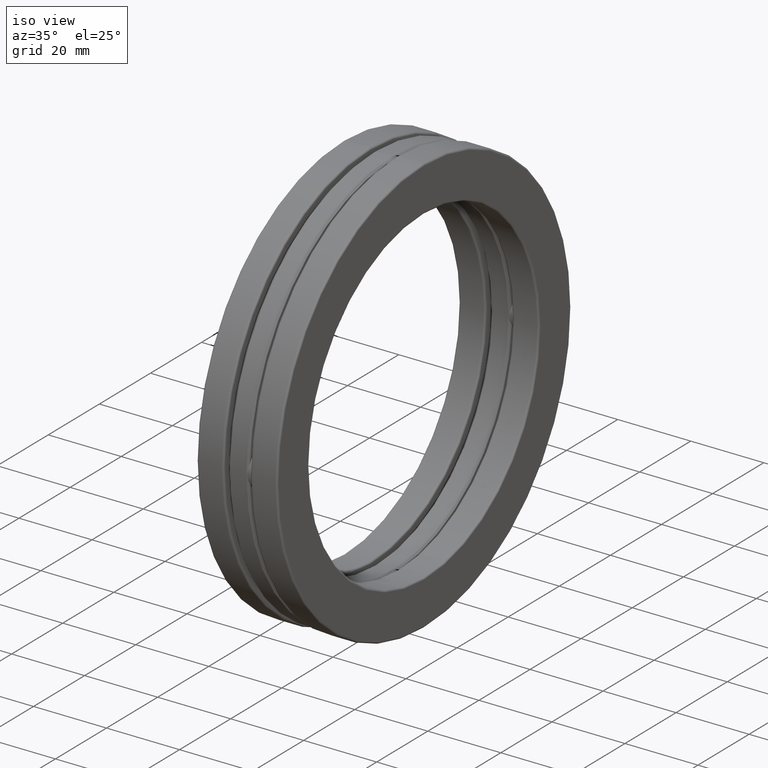
[diagram: clean part render]
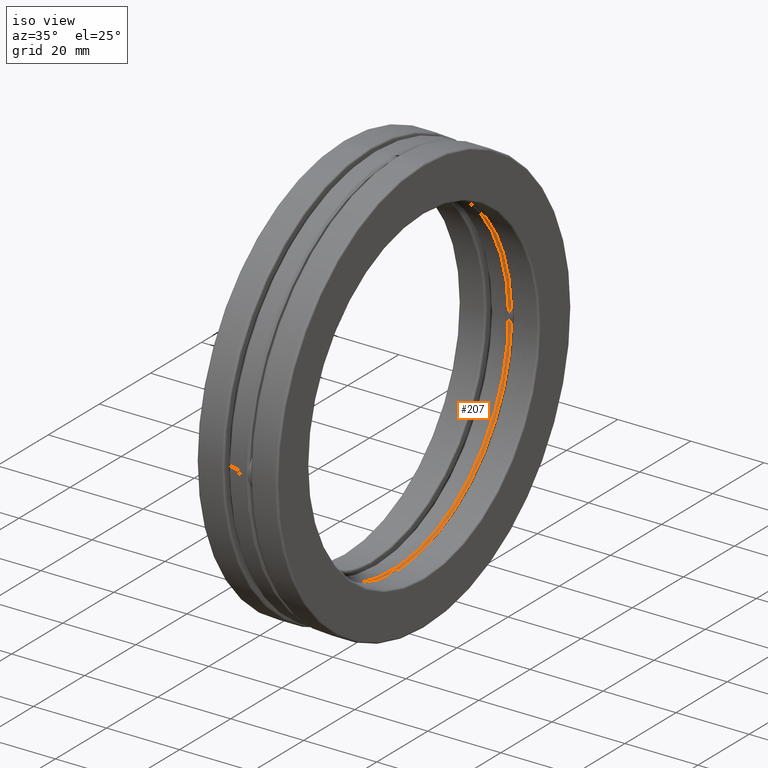
[diagram: same view with one face highlighted and labeled with its STEP entity id]
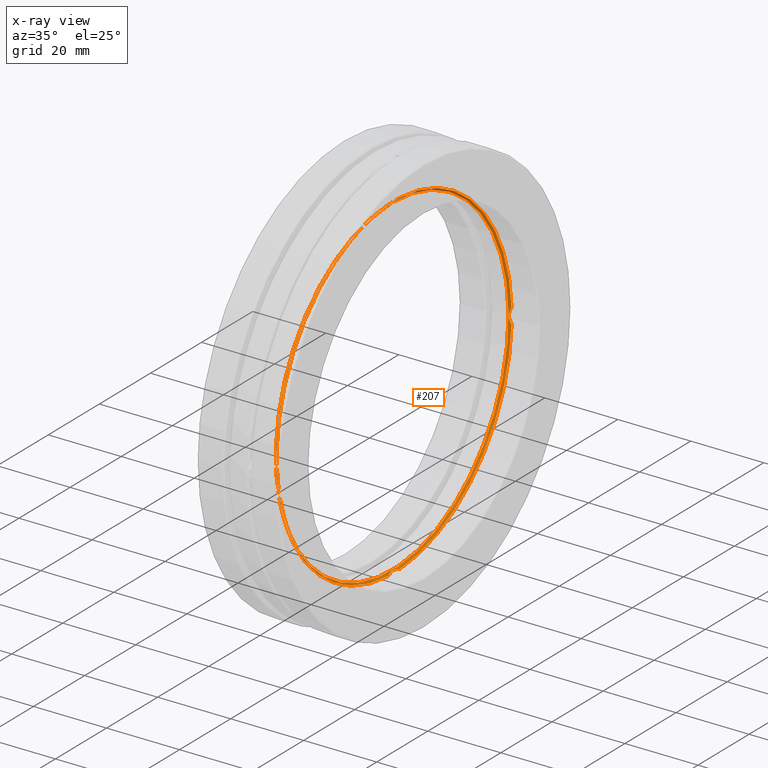
[diagram: x-ray of the same camera — body ghosted, the highlighted face saturated]
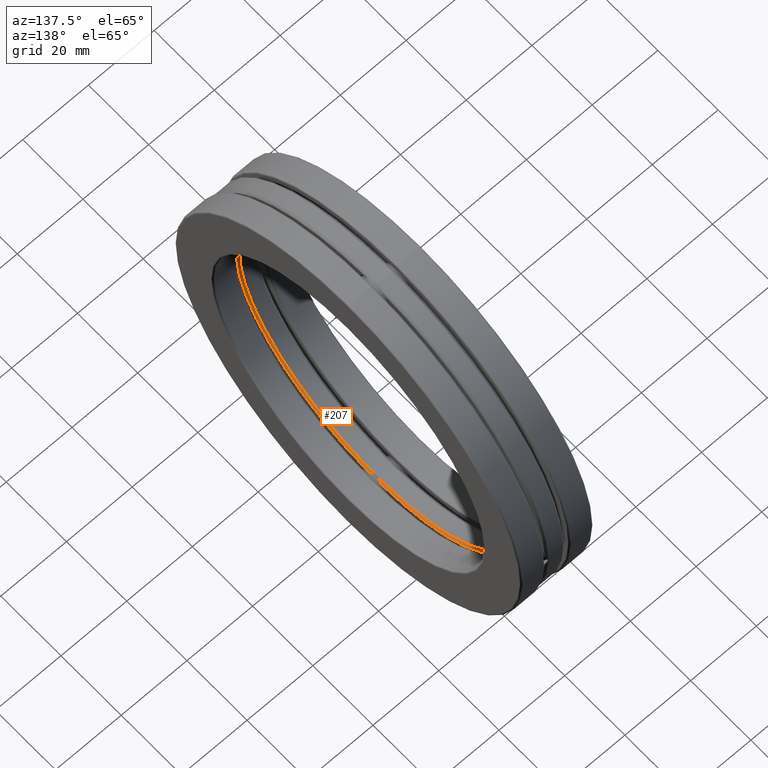
[diagram: same view with one face highlighted and labeled with its STEP entity id]
A machine part, iso view. The second image highlights one B-rep face of the part: STEP entity #207.
The next image is the same camera in x-ray: the body ghosted, the highlighted face saturated — about 0% of this face is hidden behind the body in this view.
A second angle (auxiliary view) of the same face is appended — the face is thin or edge-on in the first view.
In plain terms, the highlighted conical surface has half-angle 45 deg.
Its self-contained STEP definition (entity closure, byte-faithful):
#4 = DIRECTION ( 'NONE',  ( -1.000000000000000000, -0.0000000000000000000, -0.0000000000000000000 ) ) ;
#19 = CARTESIAN_POINT ( 'NONE',  ( 0.09819688409668726700, -0.05678285190472583800, 1.800604805620974000 ) ) ;
#39 = EDGE_CURVE ( 'NONE', #686, #373, #80, .T. ) ;
#45 = CARTESIAN_POINT ( 'NONE',  ( 0.09366021172364553900, -1.796561274670247500, 0.03608360055046883100 ) ) ;
#47 = CARTESIAN_POINT ( 'NONE',  ( 0.09211555587707569200, -1.795184561043630300, -0.02899919127321649200 ) ) ;
#48 = ORIENTED_EDGE ( 'NONE', *, *, #1238, .T. ) ;
#74 = CARTESIAN_POINT ( 'NONE',  ( 0.09090045910018478000, 1.794105889119683900, -0.01453536508755670800 ) ) ;
#80 = B_SPLINE_CURVE_WITH_KNOTS ( 'NONE', 3,
 ( #456, #1165, #344, #45, #1145, #635, #644, #837, #47, #848, #1045, #449 ),
 .UNSPECIFIED., .F., .F.,
 ( 4, 2, 2, 2, 2, 4 ),
 ( 5.193073266879258000E-007, 0.001102800087534504700, 0.001653940477638415400, 0.002205080867742325800, 0.003307361647950147100, 0.004409642428157968400 ),
 .UNSPECIFIED. ) ;
#86 = EDGE_CURVE ( 'NONE', #1179, #920, #1278, .T. ) ;
#88 = B_SPLINE_CURVE_WITH_KNOTS ( 'NONE', 3,
 ( #978, #184, #478, #167, #1188, #74, #875, #387, #789, #1299, #1290, #512 ),
 .UNSPECIFIED., .F., .F.,
 ( 4, 2, 2, 2, 2, 4 ),
 ( 5.193073266879258000E-007, 0.001102800087534504700, 0.001653940477638415400, 0.002205080867742325800, 0.003307361647950147100, 0.004409642428157968400 ),
 .UNSPECIFIED. ) ;
#99 = CARTESIAN_POINT ( 'NONE',  ( 0.1082500000000000000, -1.809607561020939400, 0.08278118805530955400 ) ) ;
#129 = CARTESIAN_POINT ( 'NONE',  ( 0.09211555587707590000, 0.02899919127321010800, -1.795184561043631200 ) ) ;
#132 = CARTESIAN_POINT ( 'NONE',  ( 0.08825000000000003700, 0.0000000000000000000, 1.791500000000000300 ) ) ;
#135 = CARTESIAN_POINT ( 'NONE',  ( 0.09049146656597278900, 0.01432169199240248800, -1.793742413902820000 ) ) ;
#150 = EDGE_CURVE ( 'NONE', #475, #270, #174, .T. ) ;
#162 = CARTESIAN_POINT ( 'NONE',  ( 0.09366021172364537300, 0.03608360055048777400, 1.796561274670247300 ) ) ;
#167 = CARTESIAN_POINT ( 'NONE',  ( 0.09366021172364553900, 1.796561274670247500, -0.03608360055046883100 ) ) ;
#174 = CIRCLE ( 'NONE', #999, 1.811500000000000300 ) ;
#176 = EDGE_CURVE ( 'NONE', #475, #731, #391, .T. ) ;
#184 = CARTESIAN_POINT ( 'NONE',  ( 0.1026794233803615400, 1.804606396582097100, -0.07020641607522278000 ) ) ;
#205 = ORIENTED_EDGE ( 'NONE', *, *, #39, .T. ) ;
#206 = CARTESIAN_POINT ( 'NONE',  ( 0.1026794233803617100, -0.07020641607522899700, -1.804606396582095800 ) ) ;
#207 = ADVANCED_FACE ( 'NONE', ( #463, #1191 ), #639, .F. ) ;
#216 = DIRECTION ( 'NONE',  ( 0.0000000000000000000, 0.0000000000000000000, 1.000000000000000000 ) ) ;
#236 = CARTESIAN_POINT ( 'NONE',  ( 0.1082500000000000000, 0.08278118805530324000, -1.809607561020939700 ) ) ;
#256 = CARTESIAN_POINT ( 'NONE',  ( 0.1082500000000000400, 0.0000000000000000000, 0.0000000000000000000 ) ) ;
#270 = VERTEX_POINT ( 'NONE', #1052 ) ;
#287 = CARTESIAN_POINT ( 'NONE',  ( 0.09090045910018514100, 0.01453536508757549300, 1.794105889119683700 ) ) ;
#312 = CARTESIAN_POINT ( 'NONE',  ( 0.09825674132571339500, -0.05700060526618723500, -1.800658211196199700 ) ) ;
#330 = CARTESIAN_POINT ( 'NONE',  ( 0.1082500000000000000, -0.08278118805529061100, 1.809607561020940100 ) ) ;
#344 = CARTESIAN_POINT ( 'NONE',  ( 0.09825674132571353400, -1.800658211196200400, 0.05700060526618080200 ) ) ;
#366 = CARTESIAN_POINT ( 'NONE',  ( 0.1082500000000000400, 0.0000000000000000000, 0.0000000000000000000 ) ) ;
#373 = VERTEX_POINT ( 'NONE', #1097 ) ;
#377 = CARTESIAN_POINT ( 'NONE',  ( 0.09247125115489798800, 0.02888486459022225600, 1.795503223269084600 ) ) ;
#384 = DIRECTION ( 'NONE',  ( -1.000000000000000000, -0.0000000000000000000, -0.0000000000000000000 ) ) ;
#387 = CARTESIAN_POINT ( 'NONE',  ( 0.09049146656597277500, 1.793742413902819500, 0.01432169199240873600 ) ) ;
#391 = B_SPLINE_CURVE_WITH_KNOTS ( 'NONE', 3,
 ( #874, #653, #480, #162, #377, #287, #584, #529, #1226, #19, #1234, #330 ),
 .UNSPECIFIED., .F., .F.,
 ( 4, 2, 2, 2, 2, 4 ),
 ( 5.193073266879259100E-007, 0.001102800087534507800, 0.001653940477638417800, 0.002205080867742328000, 0.003307361647950147900, 0.004409642428157968400 ),
 .UNSPECIFIED. ) ;
#406 = EDGE_LOOP ( 'NONE', ( #48, #453, #817, #741, #1308, #1137, #205, #900 ) ) ;
#423 = CARTESIAN_POINT ( 'NONE',  ( 0.1082500000000000000, 1.809607561020939400, -0.08278118805530955400 ) ) ;
#441 = CARTESIAN_POINT ( 'NONE',  ( 0.09090045910018503000, -0.01453536508756298100, -1.794105889119684400 ) ) ;
#449 = CARTESIAN_POINT ( 'NONE',  ( 0.1082500000000000000, -1.809607561020939400, -0.08278118805530955400 ) ) ;
#453 = ORIENTED_EDGE ( 'NONE', *, *, #86, .F. ) ;
#456 = CARTESIAN_POINT ( 'NONE',  ( 0.1082500000000000000, -1.809607561020939400, 0.08278118805530955400 ) ) ;
#463 = FACE_OUTER_BOUND ( 'NONE', #406, .T. ) ;
#475 = VERTEX_POINT ( 'NONE', #1257 ) ;
#477 = AXIS2_PLACEMENT_3D ( 'NONE', #654, #647, #960 ) ;
#478 = CARTESIAN_POINT ( 'NONE',  ( 0.09825674132571353400, 1.800658211196200400, -0.05700060526618080200 ) ) ;
#480 = CARTESIAN_POINT ( 'NONE',  ( 0.09825674132571332600, 0.05700060526619976600, 1.800658211196199500 ) ) ;
#512 = CARTESIAN_POINT ( 'NONE',  ( 0.1082500000000000000, 1.809607561020939400, 0.08278118805530955400 ) ) ;
#529 = CARTESIAN_POINT ( 'NONE',  ( 0.09049146656597277500, -0.01432169199238995400, 1.793742413902819700 ) ) ;
#531 = CARTESIAN_POINT ( 'NONE',  ( 0.1082500000000000000, -0.08278118805529061100, 1.809607561020940100 ) ) ;
#533 = AXIS2_PLACEMENT_3D ( 'NONE', #981, #384, #580 ) ;
#580 = DIRECTION ( 'NONE',  ( 0.0000000000000000000, 0.0000000000000000000, 1.000000000000000000 ) ) ;
#584 = CARTESIAN_POINT ( 'NONE',  ( 0.09050431930504467000, 0.007338091555085365400, 1.793753839798575300 ) ) ;
#630 = CARTESIAN_POINT ( 'NONE',  ( 0.09366021172364538700, -0.03608360055047527000, -1.796561274670247300 ) ) ;
#633 = DIRECTION ( 'NONE',  ( 1.000000000000000000, 0.0000000000000000000, 0.0000000000000000000 ) ) ;
#635 = CARTESIAN_POINT ( 'NONE',  ( 0.09090045910018478000, -1.794105889119683900, 0.01453536508755670800 ) ) ;
#637 = EDGE_CURVE ( 'NONE', #709, #709, #1261, .T. ) ;
#638 = CARTESIAN_POINT ( 'NONE',  ( 0.1026757019415255500, 0.07019801546465169500, -1.804603055540614100 ) ) ;
#639 = CONICAL_SURFACE ( 'NONE', #1108, 1.811500000000000300, 0.7853981633974500600 ) ;
#644 = CARTESIAN_POINT ( 'NONE',  ( 0.09050431930504467000, -1.793753839798574800, 0.007338091555066574900 ) ) ;
#647 = DIRECTION ( 'NONE',  ( -1.000000000000000000, -0.0000000000000000000, -0.0000000000000000000 ) ) ;
#653 = CARTESIAN_POINT ( 'NONE',  ( 0.1026794233803617500, 0.07020641607524164000, 1.804606396582096000 ) ) ;
#654 = CARTESIAN_POINT ( 'NONE',  ( 0.1082500000000000400, 0.0000000000000000000, 0.0000000000000000000 ) ) ;
#676 = B_SPLINE_CURVE_WITH_KNOTS ( 'NONE', 3,
 ( #1211, #206, #312, #630, #1046, #441, #739, #135, #129, #1153, #638, #236 ),
 .UNSPECIFIED., .F., .F.,
 ( 4, 2, 2, 2, 2, 4 ),
 ( 5.193073266879260100E-007, 0.001102800087534511200, 0.001653940477638420800, 0.002205080867742330600, 0.003307361647950149700, 0.004409642428157968400 ),
 .UNSPECIFIED. ) ;
#686 = VERTEX_POINT ( 'NONE', #99 ) ;
#709 = VERTEX_POINT ( 'NONE', #132 ) ;
#717 = AXIS2_PLACEMENT_3D ( 'NONE', #930, #734, #729 ) ;
#729 = DIRECTION ( 'NONE',  ( 0.0000000000000000000, 0.0000000000000000000, 1.000000000000000000 ) ) ;
#731 = VERTEX_POINT ( 'NONE', #531 ) ;
#734 = DIRECTION ( 'NONE',  ( -1.000000000000000000, -0.0000000000000000000, -0.0000000000000000000 ) ) ;
#739 = CARTESIAN_POINT ( 'NONE',  ( 0.09050431930504467000, -0.007338091555072852000, -1.793753839798575100 ) ) ;
#741 = ORIENTED_EDGE ( 'NONE', *, *, #150, .F. ) ;
#750 = CARTESIAN_POINT ( 'NONE',  ( 0.1082500000000000000, -0.08278118805531588200, -1.809607561020939000 ) ) ;
#756 = CARTESIAN_POINT ( 'NONE',  ( 0.1082500000000000000, 0.08278118805530324000, -1.809607561020939700 ) ) ;
#789 = CARTESIAN_POINT ( 'NONE',  ( 0.09211555587707569200, 1.795184561043630300, 0.02899919127321649200 ) ) ;
#801 = CARTESIAN_POINT ( 'NONE',  ( 0.08825000000000003700, 0.0000000000000000000, 0.0000000000000000000 ) ) ;
#817 = ORIENTED_EDGE ( 'NONE', *, *, #1021, .T. ) ;
#837 = CARTESIAN_POINT ( 'NONE',  ( 0.09049146656597277500, -1.793742413902819500, -0.01432169199240873600 ) ) ;
#848 = CARTESIAN_POINT ( 'NONE',  ( 0.09819688409668711500, -1.800604805620972700, -0.05678285190474476700 ) ) ;
#869 = EDGE_CURVE ( 'NONE', #686, #731, #1230, .T. ) ;
#874 = CARTESIAN_POINT ( 'NONE',  ( 0.1082500000000000000, 0.08278118805532851100, 1.809607561020938600 ) ) ;
#875 = CARTESIAN_POINT ( 'NONE',  ( 0.09050431930504467000, 1.793753839798574800, -0.007338091555066574900 ) ) ;
#891 = VERTEX_POINT ( 'NONE', #750 ) ;
#900 = ORIENTED_EDGE ( 'NONE', *, *, #1300, .F. ) ;
#905 = EDGE_LOOP ( 'NONE', ( #1032 ) ) ;
#920 = VERTEX_POINT ( 'NONE', #756 ) ;
#930 = CARTESIAN_POINT ( 'NONE',  ( 0.1082500000000000400, 0.0000000000000000000, 0.0000000000000000000 ) ) ;
#960 = DIRECTION ( 'NONE',  ( 0.0000000000000000000, 0.0000000000000000000, 1.000000000000000000 ) ) ;
#978 = CARTESIAN_POINT ( 'NONE',  ( 0.1082500000000000000, 1.809607561020939400, -0.08278118805530955400 ) ) ;
#981 = CARTESIAN_POINT ( 'NONE',  ( 0.1082500000000000400, 0.0000000000000000000, 0.0000000000000000000 ) ) ;
#999 = AXIS2_PLACEMENT_3D ( 'NONE', #366, #1061, #1276 ) ;
#1021 = EDGE_CURVE ( 'NONE', #1179, #270, #88, .T. ) ;
#1032 = ORIENTED_EDGE ( 'NONE', *, *, #637, .T. ) ;
#1036 = DIRECTION ( 'NONE',  ( 0.0000000000000000000, 0.0000000000000000000, -1.000000000000000000 ) ) ;
#1045 = CARTESIAN_POINT ( 'NONE',  ( 0.1026757019415254800, -1.804603055540613800, -0.07019801546465792600 ) ) ;
#1046 = CARTESIAN_POINT ( 'NONE',  ( 0.09247125115489786300, -0.02888486459020972500, -1.795503223269085300 ) ) ;
#1052 = CARTESIAN_POINT ( 'NONE',  ( 0.1082500000000000000, 1.809607561020939400, 0.08278118805530955400 ) ) ;
#1061 = DIRECTION ( 'NONE',  ( -1.000000000000000000, -0.0000000000000000000, -0.0000000000000000000 ) ) ;
#1097 = CARTESIAN_POINT ( 'NONE',  ( 0.1082500000000000000, -1.809607561020939400, -0.08278118805530955400 ) ) ;
#1108 = AXIS2_PLACEMENT_3D ( 'NONE', #256, #633, #1036 ) ;
#1121 = CIRCLE ( 'NONE', #717, 1.811500000000000300 ) ;
#1137 = ORIENTED_EDGE ( 'NONE', *, *, #869, .F. ) ;
#1145 = CARTESIAN_POINT ( 'NONE',  ( 0.09247125115489765500, -1.795503223269084600, 0.02888486459020343100 ) ) ;
#1153 = CARTESIAN_POINT ( 'NONE',  ( 0.09819688409668722600, 0.05678285190473836300, -1.800604805620973400 ) ) ;
#1165 = CARTESIAN_POINT ( 'NONE',  ( 0.1026794233803615400, -1.804606396582097100, 0.07020641607522278000 ) ) ;
#1179 = VERTEX_POINT ( 'NONE', #423 ) ;
#1185 = AXIS2_PLACEMENT_3D ( 'NONE', #801, #4, #216 ) ;
#1188 = CARTESIAN_POINT ( 'NONE',  ( 0.09247125115489765500, 1.795503223269084600, -0.02888486459020343100 ) ) ;
#1191 = FACE_BOUND ( 'NONE', #905, .T. ) ;
#1211 = CARTESIAN_POINT ( 'NONE',  ( 0.1082500000000000000, -0.08278118805531588200, -1.809607561020939000 ) ) ;
#1226 = CARTESIAN_POINT ( 'NONE',  ( 0.09211555587707592800, -0.02899919127319760100, 1.795184561043631200 ) ) ;
#1230 = CIRCLE ( 'NONE', #477, 1.811500000000000300 ) ;
#1234 = CARTESIAN_POINT ( 'NONE',  ( 0.1026757019415255500, -0.07019801546463909400, 1.804603055540615200 ) ) ;
#1238 = EDGE_CURVE ( 'NONE', #891, #920, #676, .T. ) ;
#1257 = CARTESIAN_POINT ( 'NONE',  ( 0.1082500000000000000, 0.08278118805532851100, 1.809607561020938600 ) ) ;
#1261 = CIRCLE ( 'NONE', #1185, 1.791500000000000300 ) ;
#1276 = DIRECTION ( 'NONE',  ( 0.0000000000000000000, 0.0000000000000000000, 1.000000000000000000 ) ) ;
#1278 = CIRCLE ( 'NONE', #533, 1.811500000000000300 ) ;
#1290 = CARTESIAN_POINT ( 'NONE',  ( 0.1026757019415254800, 1.804603055540613800, 0.07019801546465792600 ) ) ;
#1299 = CARTESIAN_POINT ( 'NONE',  ( 0.09819688409668711500, 1.800604805620972700, 0.05678285190474476700 ) ) ;
#1300 = EDGE_CURVE ( 'NONE', #891, #373, #1121, .T. ) ;
#1308 = ORIENTED_EDGE ( 'NONE', *, *, #176, .T. ) ;